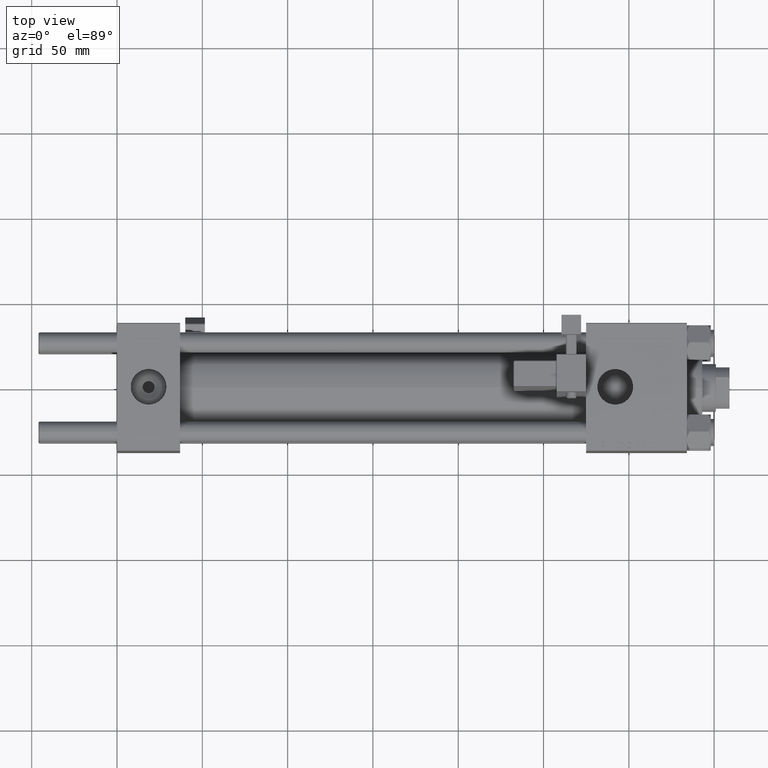
[diagram: clean part render]
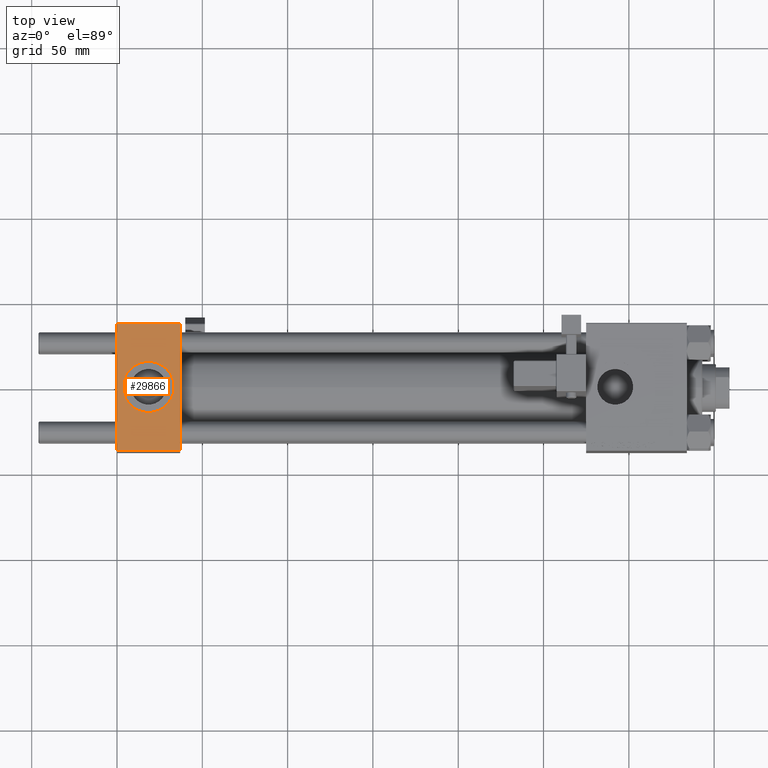
[diagram: same view with one face highlighted and labeled with its STEP entity id]
A machine part, top view. The second image highlights one B-rep face of the part: STEP entity #29866.
In plain terms, the highlighted planar face has unit normal (0, 0, -1).
Its self-contained STEP definition (entity closure, byte-faithful):
#726 = EDGE_CURVE ( 'NONE', #51111, #3215, #15474, .T. ) ;
#873 = EDGE_CURVE ( 'NONE', #3215, #51111, #22438, .T. ) ;
#1093 = CARTESIAN_POINT ( 'NONE',  ( 0.000000000000000000, 36.99999999999999289, 37.50000000000000000 ) ) ;
#1864 = VECTOR ( 'NONE', #38742, 1000.000000000000000 ) ;
#1934 = CARTESIAN_POINT ( 'NONE',  ( 37.00000000000000000, 37.49999999999999289, 37.50000000000000000 ) ) ;
#2171 = DIRECTION ( 'NONE',  ( 0.000000000000000000, 0.000000000000000000, 1.000000000000000000 ) ) ;
#2201 = LINE ( 'NONE', #1934, #34899 ) ;
#2606 = ORIENTED_EDGE ( 'NONE', *, *, #47364, .T. ) ;
#2714 = DIRECTION ( 'NONE',  ( 1.000000000000000000, 0.000000000000000000, 0.000000000000000000 ) ) ;
#3215 = VERTEX_POINT ( 'NONE', #25738 ) ;
#5671 = CARTESIAN_POINT ( 'NONE',  ( 37.00000000000000000, 37.49999999999999289, 37.50000000000000000 ) ) ;
#7260 = EDGE_CURVE ( 'NONE', #11691, #42750, #2201, .T. ) ;
#7695 = EDGE_CURVE ( 'NONE', #50584, #42750, #16030, .T. ) ;
#9228 = PLANE ( 'NONE',  #45248 ) ;
#10321 = ORIENTED_EDGE ( 'NONE', *, *, #7260, .F. ) ;
#11691 = VERTEX_POINT ( 'NONE', #24202 ) ;
#12283 = VECTOR ( 'NONE', #32405, 1000.000000000000000 ) ;
#13078 = VECTOR ( 'NONE', #26321, 1000.000000000000000 ) ;
#13234 = LINE ( 'NONE', #45265, #13078 ) ;
#14230 = EDGE_LOOP ( 'NONE', ( #2606, #16828, #10321, #47302 ) ) ;
#14623 = AXIS2_PLACEMENT_3D ( 'NONE', #43102, #2171, #2714 ) ;
#15474 = CIRCLE ( 'NONE', #52995, 15.00000000000000355 ) ;
#16030 = LINE ( 'NONE', #19581, #12283 ) ;
#16828 = ORIENTED_EDGE ( 'NONE', *, *, #7695, .T. ) ;
#19581 = CARTESIAN_POINT ( 'NONE',  ( 37.00000000000000000, -37.00000000000000711, 37.49999999999999289 ) ) ;
#19950 = DIRECTION ( 'NONE',  ( 1.000000000000000000, 0.000000000000000000, 0.000000000000000000 ) ) ;
#21499 = DIRECTION ( 'NONE',  ( 0.000000000000000000, 1.000000000000000000, 9.251858538542971581E-17 ) ) ;
#21773 = FACE_OUTER_BOUND ( 'NONE', #14230, .T. ) ;
#22438 = CIRCLE ( 'NONE', #14623, 15.00000000000000355 ) ;
#23588 = EDGE_LOOP ( 'NONE', ( #29676, #37321 ) ) ;
#24202 = CARTESIAN_POINT ( 'NONE',  ( 37.00000000000000000, 36.99999999999999289, 37.50000000000000000 ) ) ;
#25738 = CARTESIAN_POINT ( 'NONE',  ( 3.499999999999997780, -3.367200229209391300E-15, 37.50000000000000000 ) ) ;
#26321 = DIRECTION ( 'NONE',  ( 0.000000000000000000, -1.000000000000000000, -9.251858538542971581E-17 ) ) ;
#29676 = ORIENTED_EDGE ( 'NONE', *, *, #726, .F. ) ;
#29866 = ADVANCED_FACE ( 'NONE', ( #40170, #21773 ), #9228, .F. ) ;
#29986 = VERTEX_POINT ( 'NONE', #48502 ) ;
#32405 = DIRECTION ( 'NONE',  ( 1.000000000000000000, 0.000000000000000000, 0.000000000000000000 ) ) ;
#34899 = VECTOR ( 'NONE', #51864, 1000.000000000000000 ) ;
#37321 = ORIENTED_EDGE ( 'NONE', *, *, #873, .F. ) ;
#38742 = DIRECTION ( 'NONE',  ( -1.000000000000000000, 0.000000000000000000, 0.000000000000000000 ) ) ;
#40170 = FACE_BOUND ( 'NONE', #23588, .T. ) ;
#41990 = DIRECTION ( 'NONE',  ( 0.000000000000000000, 9.251858538542971581E-17, -1.000000000000000000 ) ) ;
#42750 = VERTEX_POINT ( 'NONE', #51964 ) ;
#43102 = CARTESIAN_POINT ( 'NONE',  ( 18.50000000000000000, -5.204170427930421283E-15, 37.50000000000000000 ) ) ;
#43928 = CARTESIAN_POINT ( 'NONE',  ( 0.000000000000000000, -37.00000000000000711, 37.49999999999999289 ) ) ;
#45248 = AXIS2_PLACEMENT_3D ( 'NONE', #5671, #41990, #21499 ) ;
#45265 = CARTESIAN_POINT ( 'NONE',  ( 0.000000000000000000, 37.49999999999999289, 37.50000000000000000 ) ) ;
#46539 = CARTESIAN_POINT ( 'NONE',  ( 33.50000000000000000, -5.204170427930421283E-15, 37.50000000000000000 ) ) ;
#47302 = ORIENTED_EDGE ( 'NONE', *, *, #50541, .T. ) ;
#47364 = EDGE_CURVE ( 'NONE', #29986, #50584, #13234, .T. ) ;
#48502 = CARTESIAN_POINT ( 'NONE',  ( 0.000000000000000000, 36.99999999999999289, 37.50000000000000000 ) ) ;
#49692 = DIRECTION ( 'NONE',  ( 0.000000000000000000, 0.000000000000000000, 1.000000000000000000 ) ) ;
#49956 = CARTESIAN_POINT ( 'NONE',  ( 18.50000000000000000, -5.204170427930421283E-15, 37.50000000000000000 ) ) ;
#50541 = EDGE_CURVE ( 'NONE', #11691, #29986, #50765, .T. ) ;
#50584 = VERTEX_POINT ( 'NONE', #43928 ) ;
#50765 = LINE ( 'NONE', #1093, #1864 ) ;
#51111 = VERTEX_POINT ( 'NONE', #46539 ) ;
#51864 = DIRECTION ( 'NONE',  ( 0.000000000000000000, -1.000000000000000000, -9.251858538542971581E-17 ) ) ;
#51964 = CARTESIAN_POINT ( 'NONE',  ( 37.00000000000000000, -37.00000000000000711, 37.49999999999999289 ) ) ;
#52995 = AXIS2_PLACEMENT_3D ( 'NONE', #49956, #49692, #19950 ) ;